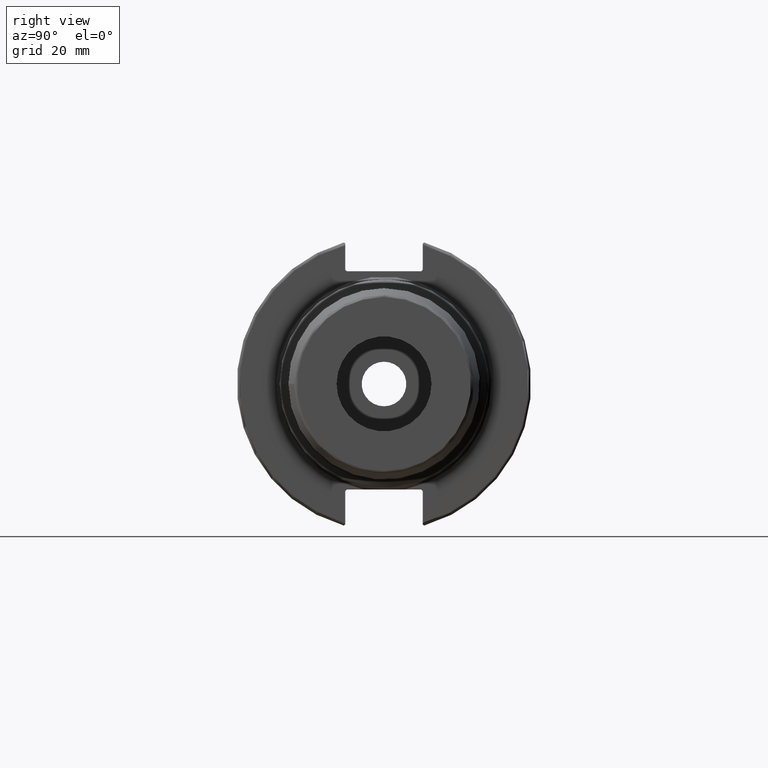
[diagram: clean part render]
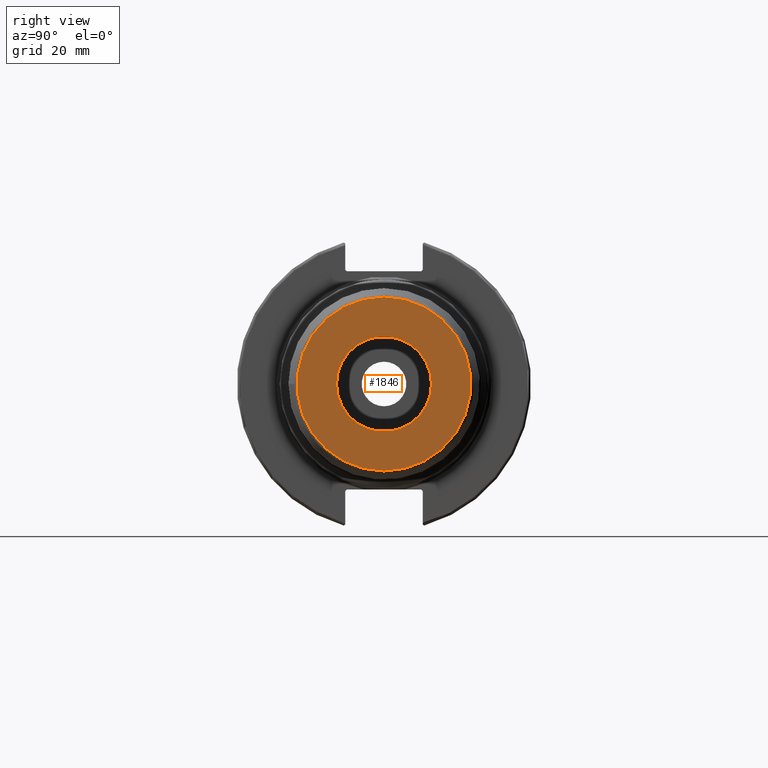
[diagram: same view with one face highlighted and labeled with its STEP entity id]
A machine part, right view. The second image highlights one B-rep face of the part: STEP entity #1846.
In plain terms, the highlighted planar face has unit normal (1, 0, 0).
Its self-contained STEP definition (entity closure, byte-faithful):
#33=PLANE('',#2041);
#109=FACE_BOUND('',#302,.T.);
#193=FACE_OUTER_BOUND('',#301,.T.);
#301=EDGE_LOOP('',(#1372));
#302=EDGE_LOOP('',(#1373));
#667=CIRCLE('',#2039,29.082673012021);
#669=CIRCLE('',#2042,15.875);
#787=VERTEX_POINT('',#2994);
#788=VERTEX_POINT('',#2998);
#1006=EDGE_CURVE('',#787,#787,#667,.T.);
#1008=EDGE_CURVE('',#788,#788,#669,.T.);
#1372=ORIENTED_EDGE('',*,*,#1006,.F.);
#1373=ORIENTED_EDGE('',*,*,#1008,.F.);
#1846=ADVANCED_FACE('',(#193,#109),#33,.T.);
#2039=AXIS2_PLACEMENT_3D('',#2995,#2382,#2383);
#2041=AXIS2_PLACEMENT_3D('',#2997,#2386,#2387);
#2042=AXIS2_PLACEMENT_3D('',#2999,#2388,#2389);
#2382=DIRECTION('center_axis',(-1.,0.,0.));
#2383=DIRECTION('ref_axis',(0.,-1.,1.83697019872103E-16));
#2386=DIRECTION('center_axis',(1.,0.,0.));
#2387=DIRECTION('ref_axis',(0.,0.,-1.));
#2388=DIRECTION('center_axis',(1.,0.,0.));
#2389=DIRECTION('ref_axis',(0.,0.,-1.));
#2994=CARTESIAN_POINT('',(101.6,-3.56160024148207E-15,29.082673012021));
#2995=CARTESIAN_POINT('Origin',(101.6,0.,0.));
#2997=CARTESIAN_POINT('Origin',(101.6,15.875,0.));
#2998=CARTESIAN_POINT('',(101.6,-15.875,-1.94412679364642E-15));
#2999=CARTESIAN_POINT('Origin',(101.6,0.,0.));